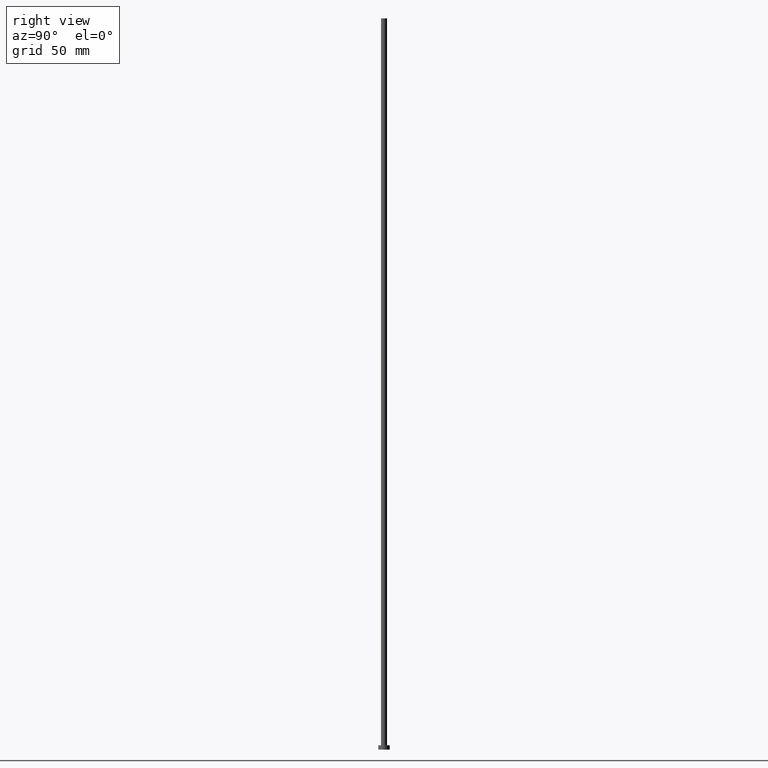
[diagram: clean part render]
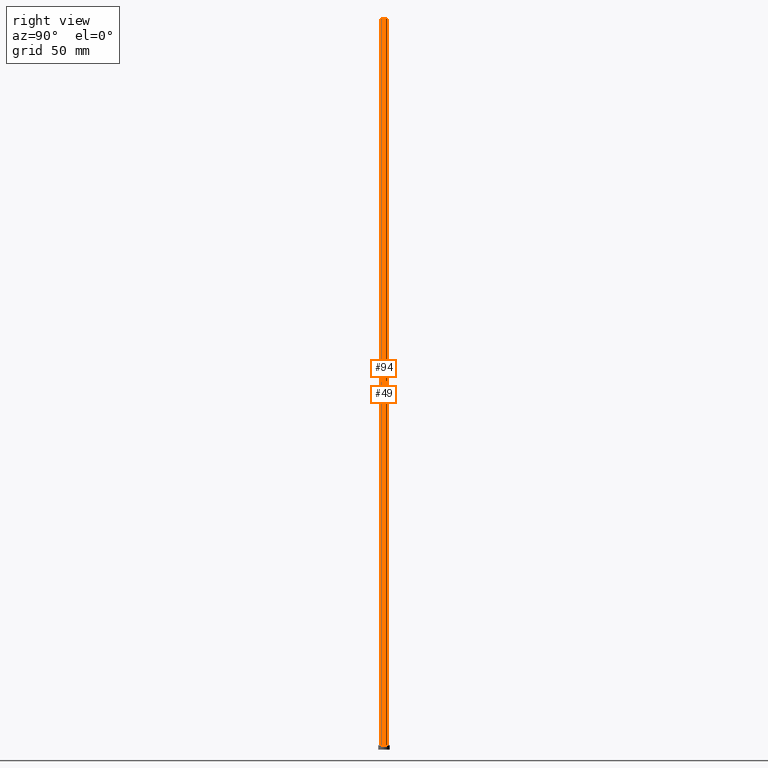
[diagram: same view with one multi-face feature highlighted, each face labeled with its STEP entity id]
A machine part, right view. The highlighted faces form ONE feature: a constant-radius fillet chain: 2 tangent blend faces with common blend radius 2.1 mm. The faces share edges in the B-rep.
Their STEP definitions:
[1] entity #94 (Cylinder):
#5 = ORIENTED_EDGE ( 'NONE', *, *, #109, .F. ) ;
#8 = DIRECTION ( 'NONE',  ( 1.000000000000000000, 0.000000000000000000, 0.000000000000000000 ) ) ;
#17 = VERTEX_POINT ( 'NONE', #226 ) ;
#27 = VERTEX_POINT ( 'NONE', #167 ) ;
#28 = DIRECTION ( 'NONE',  ( 1.000000000000000000, 0.000000000000000000, 0.000000000000000000 ) ) ;
#37 = EDGE_CURVE ( 'NONE', #232, #17, #244, .T. ) ;
#38 = VECTOR ( 'NONE', #255, 1000.000000000000000 ) ;
#48 = CYLINDRICAL_SURFACE ( 'NONE', #165, 2.100000000000000089 ) ;
#56 = AXIS2_PLACEMENT_3D ( 'NONE', #231, #155, #8 ) ;
#64 = LINE ( 'NONE', #125, #38 ) ;
#67 = AXIS2_PLACEMENT_3D ( 'NONE', #166, #127, #28 ) ;
#73 = ORIENTED_EDGE ( 'NONE', *, *, #116, .F. ) ;
#78 = EDGE_CURVE ( 'NONE', #174, #232, #248, .T. ) ;
#94 = ADVANCED_FACE ( 'NONE', ( #103 ), #48, .T. ) ;
#100 = EDGE_LOOP ( 'NONE', ( #73, #5, #237, #119 ) ) ;
#101 = DIRECTION ( 'NONE',  ( -0.000000000000000000, -0.000000000000000000, -1.000000000000000000 ) ) ;
#103 = FACE_OUTER_BOUND ( 'NONE', #100, .T. ) ;
#109 = EDGE_CURVE ( 'NONE', #174, #27, #176, .T. ) ;
#113 = DIRECTION ( 'NONE',  ( -0.000000000000000000, -0.000000000000000000, -1.000000000000000000 ) ) ;
#116 = EDGE_CURVE ( 'NONE', #27, #17, #64, .T. ) ;
#119 = ORIENTED_EDGE ( 'NONE', *, *, #37, .T. ) ;
#125 = CARTESIAN_POINT ( 'NONE',  ( 2.100000000000000089, 2.571758278209441464E-16, 500.0000000000000000 ) ) ;
#126 = CARTESIAN_POINT ( 'NONE',  ( -2.100000000000000089, 0.000000000000000000, 500.0000000000000000 ) ) ;
#127 = DIRECTION ( 'NONE',  ( 0.000000000000000000, 0.000000000000000000, 1.000000000000000000 ) ) ;
#144 = CARTESIAN_POINT ( 'NONE',  ( 0.000000000000000000, 0.000000000000000000, 500.0000000000000000 ) ) ;
#155 = DIRECTION ( 'NONE',  ( 0.000000000000000000, 0.000000000000000000, 1.000000000000000000 ) ) ;
#159 = VECTOR ( 'NONE', #113, 1000.000000000000000 ) ;
#165 = AXIS2_PLACEMENT_3D ( 'NONE', #144, #101, #224 ) ;
#166 = CARTESIAN_POINT ( 'NONE',  ( 0.000000000000000000, 0.000000000000000000, 500.0000000000000000 ) ) ;
#167 = CARTESIAN_POINT ( 'NONE',  ( 2.100000000000000089, 2.571758278209441464E-16, 500.0000000000000000 ) ) ;
#174 = VERTEX_POINT ( 'NONE', #126 ) ;
#176 = CIRCLE ( 'NONE', #67, 2.100000000000000089 ) ;
#216 = CARTESIAN_POINT ( 'NONE',  ( -2.100000000000000089, 0.000000000000000000, 3.000000000000000000 ) ) ;
#224 = DIRECTION ( 'NONE',  ( -1.000000000000000000, 0.000000000000000000, 0.000000000000000000 ) ) ;
#226 = CARTESIAN_POINT ( 'NONE',  ( 2.100000000000000089, 2.571758278209441464E-16, 3.000000000000000000 ) ) ;
#228 = CARTESIAN_POINT ( 'NONE',  ( -2.100000000000000089, 0.000000000000000000, 500.0000000000000000 ) ) ;
#231 = CARTESIAN_POINT ( 'NONE',  ( 0.000000000000000000, 0.000000000000000000, 3.000000000000000000 ) ) ;
#232 = VERTEX_POINT ( 'NONE', #216 ) ;
#237 = ORIENTED_EDGE ( 'NONE', *, *, #78, .T. ) ;
#244 = CIRCLE ( 'NONE', #56, 2.100000000000000089 ) ;
#248 = LINE ( 'NONE', #228, #159 ) ;
#255 = DIRECTION ( 'NONE',  ( -0.000000000000000000, -0.000000000000000000, -1.000000000000000000 ) ) ;
[2] entity #49 (Cylinder):
#1 = DIRECTION ( 'NONE',  ( 1.000000000000000000, 0.000000000000000000, 0.000000000000000000 ) ) ;
#4 = CARTESIAN_POINT ( 'NONE',  ( 0.000000000000000000, 0.000000000000000000, 3.000000000000000000 ) ) ;
#11 = DIRECTION ( 'NONE',  ( -1.000000000000000000, 0.000000000000000000, 0.000000000000000000 ) ) ;
#13 = AXIS2_PLACEMENT_3D ( 'NONE', #194, #95, #11 ) ;
#17 = VERTEX_POINT ( 'NONE', #226 ) ;
#19 = ORIENTED_EDGE ( 'NONE', *, *, #78, .F. ) ;
#27 = VERTEX_POINT ( 'NONE', #167 ) ;
#38 = VECTOR ( 'NONE', #255, 1000.000000000000000 ) ;
#49 = ADVANCED_FACE ( 'NONE', ( #132 ), #212, .T. ) ;
#62 = AXIS2_PLACEMENT_3D ( 'NONE', #4, #111, #247 ) ;
#64 = LINE ( 'NONE', #125, #38 ) ;
#78 = EDGE_CURVE ( 'NONE', #174, #232, #248, .T. ) ;
#90 = DIRECTION ( 'NONE',  ( 0.000000000000000000, 0.000000000000000000, 1.000000000000000000 ) ) ;
#95 = DIRECTION ( 'NONE',  ( -0.000000000000000000, -0.000000000000000000, -1.000000000000000000 ) ) ;
#111 = DIRECTION ( 'NONE',  ( 0.000000000000000000, 0.000000000000000000, 1.000000000000000000 ) ) ;
#113 = DIRECTION ( 'NONE',  ( -0.000000000000000000, -0.000000000000000000, -1.000000000000000000 ) ) ;
#116 = EDGE_CURVE ( 'NONE', #27, #17, #64, .T. ) ;
#125 = CARTESIAN_POINT ( 'NONE',  ( 2.100000000000000089, 2.571758278209441464E-16, 500.0000000000000000 ) ) ;
#126 = CARTESIAN_POINT ( 'NONE',  ( -2.100000000000000089, 0.000000000000000000, 500.0000000000000000 ) ) ;
#132 = FACE_OUTER_BOUND ( 'NONE', #171, .T. ) ;
#134 = ORIENTED_EDGE ( 'NONE', *, *, #161, .F. ) ;
#159 = VECTOR ( 'NONE', #113, 1000.000000000000000 ) ;
#161 = EDGE_CURVE ( 'NONE', #27, #174, #233, .T. ) ;
#167 = CARTESIAN_POINT ( 'NONE',  ( 2.100000000000000089, 2.571758278209441464E-16, 500.0000000000000000 ) ) ;
#171 = EDGE_LOOP ( 'NONE', ( #134, #243, #183, #19 ) ) ;
#173 = EDGE_CURVE ( 'NONE', #17, #232, #213, .T. ) ;
#174 = VERTEX_POINT ( 'NONE', #126 ) ;
#183 = ORIENTED_EDGE ( 'NONE', *, *, #173, .T. ) ;
#186 = CARTESIAN_POINT ( 'NONE',  ( 0.000000000000000000, 0.000000000000000000, 500.0000000000000000 ) ) ;
#194 = CARTESIAN_POINT ( 'NONE',  ( 0.000000000000000000, 0.000000000000000000, 500.0000000000000000 ) ) ;
#212 = CYLINDRICAL_SURFACE ( 'NONE', #13, 2.100000000000000089 ) ;
#213 = CIRCLE ( 'NONE', #62, 2.100000000000000089 ) ;
#216 = CARTESIAN_POINT ( 'NONE',  ( -2.100000000000000089, 0.000000000000000000, 3.000000000000000000 ) ) ;
#226 = CARTESIAN_POINT ( 'NONE',  ( 2.100000000000000089, 2.571758278209441464E-16, 3.000000000000000000 ) ) ;
#228 = CARTESIAN_POINT ( 'NONE',  ( -2.100000000000000089, 0.000000000000000000, 500.0000000000000000 ) ) ;
#229 = AXIS2_PLACEMENT_3D ( 'NONE', #186, #90, #1 ) ;
#232 = VERTEX_POINT ( 'NONE', #216 ) ;
#233 = CIRCLE ( 'NONE', #229, 2.100000000000000089 ) ;
#243 = ORIENTED_EDGE ( 'NONE', *, *, #116, .T. ) ;
#247 = DIRECTION ( 'NONE',  ( 1.000000000000000000, 0.000000000000000000, 0.000000000000000000 ) ) ;
#248 = LINE ( 'NONE', #228, #159 ) ;
#255 = DIRECTION ( 'NONE',  ( -0.000000000000000000, -0.000000000000000000, -1.000000000000000000 ) ) ;